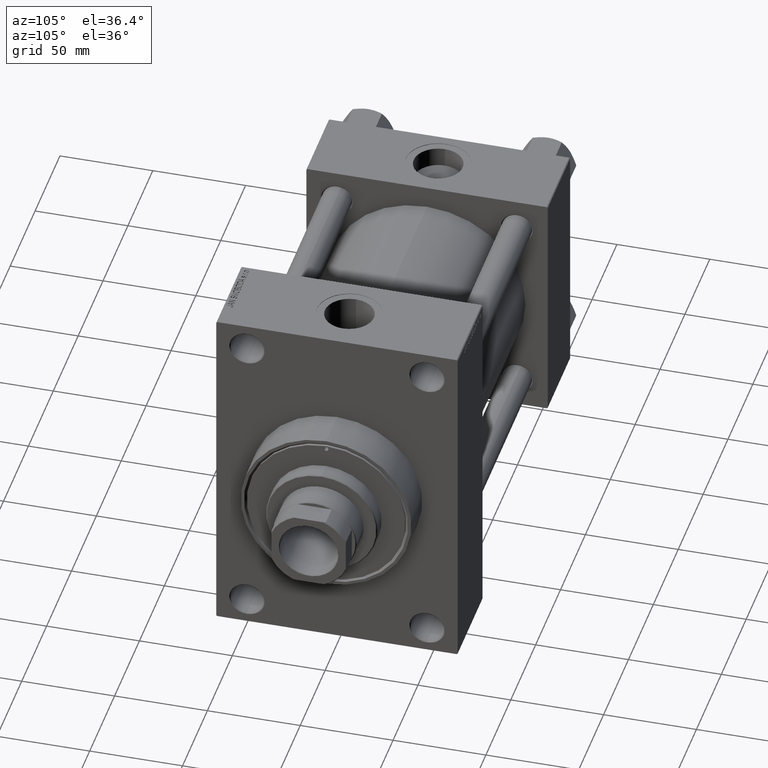
[diagram: clean part render]
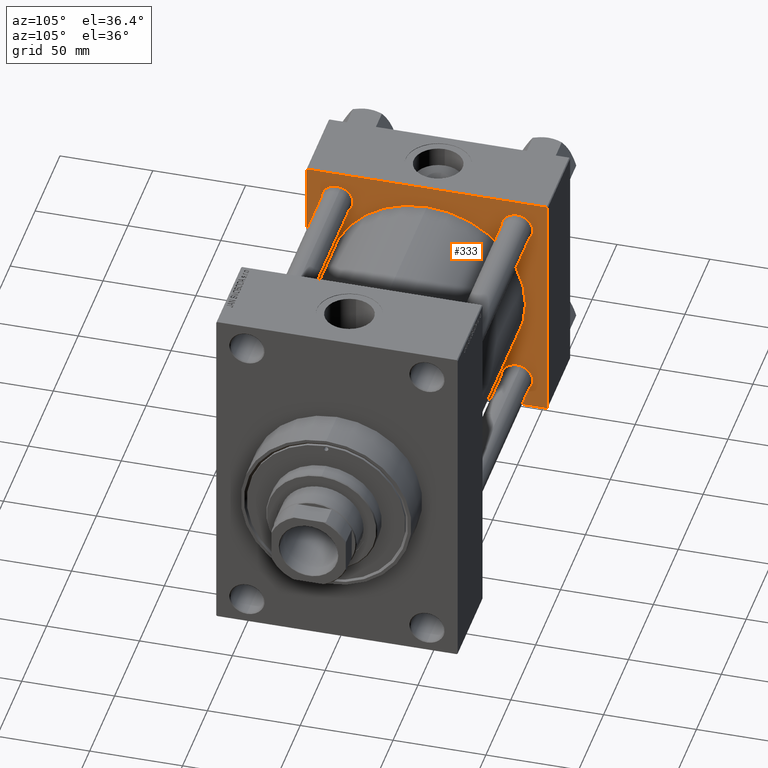
[diagram: same view with one face highlighted and labeled with its STEP entity id]
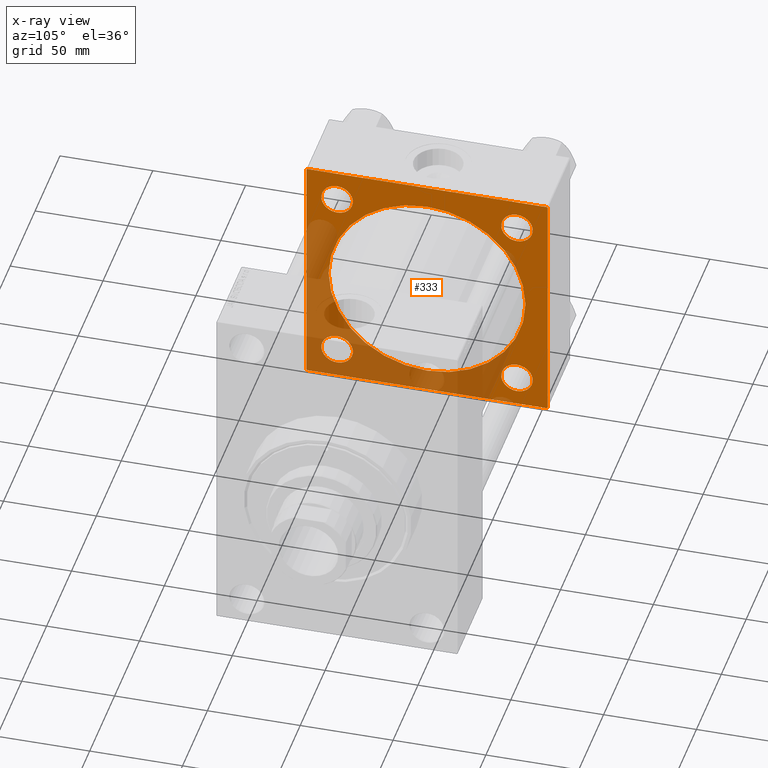
[diagram: x-ray of the same camera — body ghosted, the highlighted face saturated]
A machine part, auxiliary view. The second image highlights one B-rep face of the part: STEP entity #333.
The next image is the same camera in x-ray: the body ghosted, the highlighted face saturated — about 41% of this face is hidden behind the body in this view.
In plain terms, the highlighted planar face has unit normal (-1, 0, 0).
Its self-contained STEP definition (entity closure, byte-faithful):
#5 = ORIENTED_EDGE ( 'NONE', *, *, #9196, .T. ) ;
#77 = LINE ( 'NONE', #25258, #20166 ) ;
#333 = ADVANCED_FACE ( 'NONE', ( #32378, #20529, #2360, #16888, #16645, #17136 ), #46685, .F. ) ;
#645 = CIRCLE ( 'NONE', #47782, 8.500000000000007105 ) ;
#992 = CIRCLE ( 'NONE', #20305, 8.500000000000007105 ) ;
#1512 = EDGE_LOOP ( 'NONE', ( #13850, #5937 ) ) ;
#1544 = ORIENTED_EDGE ( 'NONE', *, *, #29699, .T. ) ;
#1743 = VERTEX_POINT ( 'NONE', #7114 ) ;
#1808 = DIRECTION ( 'NONE',  ( -1.000000000000000000, 0.000000000000000000, -0.000000000000000000 ) ) ;
#2360 = FACE_BOUND ( 'NONE', #25195, .T. ) ;
#2377 = VECTOR ( 'NONE', #30726, 1000.000000000000000 ) ;
#3067 = AXIS2_PLACEMENT_3D ( 'NONE', #26679, #41445, #9963 ) ;
#3274 = CIRCLE ( 'NONE', #14863, 8.500000000000007105 ) ;
#3380 = LINE ( 'NONE', #32442, #12457 ) ;
#3938 = DIRECTION ( 'NONE',  ( 0.000000000000000000, -0.7071067811865474617, 0.7071067811865474617 ) ) ;
#4026 = EDGE_CURVE ( 'NONE', #29438, #24361, #38602, .T. ) ;
#4693 = DIRECTION ( 'NONE',  ( 0.000000000000000000, 0.000000000000000000, 1.000000000000000000 ) ) ;
#4848 = EDGE_LOOP ( 'NONE', ( #14715, #23369 ) ) ;
#5066 = LINE ( 'NONE', #15964, #2377 ) ;
#5237 = ORIENTED_EDGE ( 'NONE', *, *, #7652, .T. ) ;
#5590 = CARTESIAN_POINT ( 'NONE',  ( 45.00000000000000000, -65.00000000000000000, -64.49999999999991473 ) ) ;
#5672 = DIRECTION ( 'NONE',  ( 0.000000000000000000, 0.000000000000000000, 1.000000000000000000 ) ) ;
#5937 = ORIENTED_EDGE ( 'NONE', *, *, #24471, .F. ) ;
#5981 = DIRECTION ( 'NONE',  ( -1.000000000000000000, 0.000000000000000000, -0.000000000000000000 ) ) ;
#6532 = EDGE_CURVE ( 'NONE', #34372, #24497, #18557, .T. ) ;
#7009 = CARTESIAN_POINT ( 'NONE',  ( 45.00000000000000000, 65.00000000000000000, 65.00000000000001421 ) ) ;
#7114 = CARTESIAN_POINT ( 'NONE',  ( 45.00000000000000000, 65.00000000000000000, 64.49999999999998579 ) ) ;
#7652 = EDGE_CURVE ( 'NONE', #27403, #20067, #12444, .T. ) ;
#8440 = AXIS2_PLACEMENT_3D ( 'NONE', #16737, #45333, #45810 ) ;
#8539 = EDGE_CURVE ( 'NONE', #37643, #42778, #992, .T. ) ;
#8758 = CARTESIAN_POINT ( 'NONE',  ( 45.00000000000000000, 64.49999999999997158, -64.99999999999998579 ) ) ;
#9196 = EDGE_CURVE ( 'NONE', #24361, #29438, #645, .T. ) ;
#9583 = CARTESIAN_POINT ( 'NONE',  ( 44.99999999999998579, -2.602085213965210642E-15, 0.000000000000000000 ) ) ;
#9676 = LINE ( 'NONE', #16917, #24437 ) ;
#9963 = DIRECTION ( 'NONE',  ( 0.000000000000000000, 0.000000000000000000, 1.000000000000000000 ) ) ;
#10003 = CIRCLE ( 'NONE', #8440, 8.500000000000007105 ) ;
#10171 = DIRECTION ( 'NONE',  ( -1.000000000000000000, 0.000000000000000000, -0.000000000000000000 ) ) ;
#10476 = VERTEX_POINT ( 'NONE', #24201 ) ;
#10692 = VERTEX_POINT ( 'NONE', #8758 ) ;
#11034 = CARTESIAN_POINT ( 'NONE',  ( 45.00000000000000000, -64.49999999999994316, -65.00000000000000000 ) ) ;
#11152 = CARTESIAN_POINT ( 'NONE',  ( 45.00000000000000000, 48.45000000000000995, 48.45000000000001705 ) ) ;
#11518 = AXIS2_PLACEMENT_3D ( 'NONE', #27207, #19937, #4693 ) ;
#11651 = VECTOR ( 'NONE', #26773, 1000.000000000000000 ) ;
#12444 = CIRCLE ( 'NONE', #42566, 8.500000000000007105 ) ;
#12457 = VECTOR ( 'NONE', #36322, 1000.000000000000114 ) ;
#12626 = ORIENTED_EDGE ( 'NONE', *, *, #27401, .T. ) ;
#12761 = EDGE_CURVE ( 'NONE', #14344, #34372, #9676, .T. ) ;
#13062 = CIRCLE ( 'NONE', #40130, 8.500000000000007105 ) ;
#13454 = DIRECTION ( 'NONE',  ( 0.000000000000000000, 0.000000000000000000, 1.000000000000000000 ) ) ;
#13850 = ORIENTED_EDGE ( 'NONE', *, *, #47036, .F. ) ;
#13855 = CARTESIAN_POINT ( 'NONE',  ( 45.00000000000000000, -48.44999999999999574, 56.95000000000003837 ) ) ;
#14344 = VERTEX_POINT ( 'NONE', #38397 ) ;
#14715 = ORIENTED_EDGE ( 'NONE', *, *, #33745, .T. ) ;
#14744 = DIRECTION ( 'NONE',  ( 0.000000000000000000, 0.000000000000000000, -1.000000000000000000 ) ) ;
#14863 = AXIS2_PLACEMENT_3D ( 'NONE', #11152, #15479, #22749 ) ;
#15479 = DIRECTION ( 'NONE',  ( -1.000000000000000000, 0.000000000000000000, -0.000000000000000000 ) ) ;
#15492 = VERTEX_POINT ( 'NONE', #11034 ) ;
#15887 = CARTESIAN_POINT ( 'NONE',  ( 45.00000000000000000, 65.00000000000000000, 65.00000000000001421 ) ) ;
#15964 = CARTESIAN_POINT ( 'NONE',  ( 45.00000000000000000, 65.00000000000000000, -64.99999999999998579 ) ) ;
#16072 = CARTESIAN_POINT ( 'NONE',  ( 45.00000000000000000, -65.00000000000000000, 64.50000000000000000 ) ) ;
#16195 = CIRCLE ( 'NONE', #3067, 53.00000000000000711 ) ;
#16361 = LINE ( 'NONE', #15887, #20202 ) ;
#16645 = FACE_BOUND ( 'NONE', #1512, .T. ) ;
#16737 = CARTESIAN_POINT ( 'NONE',  ( 45.00000000000000000, -48.44999999999999574, -48.45000000000003126 ) ) ;
#16888 = FACE_BOUND ( 'NONE', #4848, .T. ) ;
#16917 = CARTESIAN_POINT ( 'NONE',  ( 45.00000000000000000, -65.00000000000000000, 64.50000000000000000 ) ) ;
#17060 = DIRECTION ( 'NONE',  ( 0.000000000000000000, 0.000000000000000000, 1.000000000000000000 ) ) ;
#17087 = CARTESIAN_POINT ( 'NONE',  ( 45.00000000000000000, 48.45000000000000995, -56.95000000000002416 ) ) ;
#17136 = FACE_OUTER_BOUND ( 'NONE', #44914, .T. ) ;
#17212 = ORIENTED_EDGE ( 'NONE', *, *, #6532, .T. ) ;
#17374 = DIRECTION ( 'NONE',  ( -0.000000000000000000, 0.000000000000000000, 1.000000000000000000 ) ) ;
#18557 = LINE ( 'NONE', #29701, #11651 ) ;
#18876 = CARTESIAN_POINT ( 'NONE',  ( 45.00000000000000000, -64.49999999999994316, -65.00000000000000000 ) ) ;
#19163 = CARTESIAN_POINT ( 'NONE',  ( 45.00000000000000000, 48.45000000000000995, -39.95000000000000284 ) ) ;
#19440 = ORIENTED_EDGE ( 'NONE', *, *, #24669, .T. ) ;
#19566 = AXIS2_PLACEMENT_3D ( 'NONE', #9583, #28213, #13454 ) ;
#19774 = CARTESIAN_POINT ( 'NONE',  ( 45.00000000000000000, -48.44999999999999574, -39.95000000000001705 ) ) ;
#19937 = DIRECTION ( 'NONE',  ( -1.000000000000000000, 0.000000000000000000, -0.000000000000000000 ) ) ;
#20067 = VERTEX_POINT ( 'NONE', #13855 ) ;
#20166 = VECTOR ( 'NONE', #3938, 1000.000000000000114 ) ;
#20202 = VECTOR ( 'NONE', #42252, 1000.000000000000000 ) ;
#20305 = AXIS2_PLACEMENT_3D ( 'NONE', #31705, #38736, #20818 ) ;
#20529 = FACE_BOUND ( 'NONE', #28194, .T. ) ;
#20740 = CARTESIAN_POINT ( 'NONE',  ( 45.00000000000000000, -48.44999999999999574, 39.95000000000001705 ) ) ;
#20795 = CARTESIAN_POINT ( 'NONE',  ( 45.00000000000000000, 48.45000000000000995, 56.95000000000002416 ) ) ;
#20818 = DIRECTION ( 'NONE',  ( 0.000000000000000000, 0.000000000000000000, 1.000000000000000000 ) ) ;
#21053 = VERTEX_POINT ( 'NONE', #40898 ) ;
#21471 = AXIS2_PLACEMENT_3D ( 'NONE', #27787, #35296, #17374 ) ;
#22429 = EDGE_CURVE ( 'NONE', #37333, #39982, #13062, .T. ) ;
#22749 = DIRECTION ( 'NONE',  ( 0.000000000000000000, 0.000000000000000000, 1.000000000000000000 ) ) ;
#23369 = ORIENTED_EDGE ( 'NONE', *, *, #22429, .T. ) ;
#23478 = EDGE_CURVE ( 'NONE', #42778, #37643, #10003, .T. ) ;
#24201 = CARTESIAN_POINT ( 'NONE',  ( 44.99999999999998579, -2.602085213965210642E-15, 53.00000000000000711 ) ) ;
#24361 = VERTEX_POINT ( 'NONE', #19163 ) ;
#24437 = VECTOR ( 'NONE', #39199, 1000.000000000000000 ) ;
#24471 = EDGE_CURVE ( 'NONE', #41697, #10476, #16195, .T. ) ;
#24497 = VERTEX_POINT ( 'NONE', #5590 ) ;
#24669 = EDGE_CURVE ( 'NONE', #24497, #15492, #41620, .T. ) ;
#24845 = VECTOR ( 'NONE', #14744, 1000.000000000000000 ) ;
#25195 = EDGE_LOOP ( 'NONE', ( #5237, #12626 ) ) ;
#25258 = CARTESIAN_POINT ( 'NONE',  ( 45.00000000000000000, 64.49999999999997158, 65.00000000000001421 ) ) ;
#26027 = VERTEX_POINT ( 'NONE', #44003 ) ;
#26596 = LINE ( 'NONE', #7009, #24845 ) ;
#26679 = CARTESIAN_POINT ( 'NONE',  ( 44.99999999999998579, -2.602085213965210642E-15, 0.000000000000000000 ) ) ;
#26773 = DIRECTION ( 'NONE',  ( 0.000000000000000000, 0.000000000000000000, -1.000000000000000000 ) ) ;
#27207 = CARTESIAN_POINT ( 'NONE',  ( 45.00000000000000000, 48.45000000000000995, -48.45000000000001705 ) ) ;
#27401 = EDGE_CURVE ( 'NONE', #20067, #27403, #28682, .T. ) ;
#27403 = VERTEX_POINT ( 'NONE', #20740 ) ;
#27769 = ORIENTED_EDGE ( 'NONE', *, *, #8539, .T. ) ;
#27787 = CARTESIAN_POINT ( 'NONE',  ( 45.00000000000000000, 0.000000000000000000, 0.000000000000000000 ) ) ;
#28194 = EDGE_LOOP ( 'NONE', ( #40118, #5 ) ) ;
#28213 = DIRECTION ( 'NONE',  ( 1.000000000000000000, -0.000000000000000000, 0.000000000000000000 ) ) ;
#28422 = EDGE_CURVE ( 'NONE', #21053, #14344, #16361, .T. ) ;
#28624 = ORIENTED_EDGE ( 'NONE', *, *, #30130, .F. ) ;
#28682 = CIRCLE ( 'NONE', #41054, 8.500000000000007105 ) ;
#28797 = CARTESIAN_POINT ( 'NONE',  ( 45.00000000000000000, -48.44999999999999574, 48.45000000000003126 ) ) ;
#29339 = ORIENTED_EDGE ( 'NONE', *, *, #23478, .T. ) ;
#29438 = VERTEX_POINT ( 'NONE', #17087 ) ;
#29699 = EDGE_CURVE ( 'NONE', #1743, #21053, #77, .T. ) ;
#29701 = CARTESIAN_POINT ( 'NONE',  ( 45.00000000000000000, -65.00000000000000000, 65.00000000000000000 ) ) ;
#30130 = EDGE_CURVE ( 'NONE', #10692, #15492, #5066, .T. ) ;
#30481 = DIRECTION ( 'NONE',  ( 0.000000000000000000, 0.7071067811865279218, -0.7071067811865671127 ) ) ;
#30507 = ORIENTED_EDGE ( 'NONE', *, *, #43017, .T. ) ;
#30726 = DIRECTION ( 'NONE',  ( 0.000000000000000000, -1.000000000000000000, -1.067522139062650425E-16 ) ) ;
#31254 = EDGE_CURVE ( 'NONE', #1743, #26027, #26596, .T. ) ;
#31705 = CARTESIAN_POINT ( 'NONE',  ( 45.00000000000000000, -48.44999999999999574, -48.45000000000003126 ) ) ;
#32113 = DIRECTION ( 'NONE',  ( 0.000000000000000000, 0.000000000000000000, 1.000000000000000000 ) ) ;
#32378 = FACE_BOUND ( 'NONE', #47018, .T. ) ;
#32442 = CARTESIAN_POINT ( 'NONE',  ( 45.00000000000000000, 65.00000000000000000, -64.49999999999995737 ) ) ;
#32489 = CARTESIAN_POINT ( 'NONE',  ( 44.99999999999998579, 3.888542821515762466E-15, -53.00000000000000711 ) ) ;
#32747 = CARTESIAN_POINT ( 'NONE',  ( 45.00000000000000000, -48.44999999999999574, -56.95000000000003837 ) ) ;
#33022 = ORIENTED_EDGE ( 'NONE', *, *, #28422, .T. ) ;
#33546 = ORIENTED_EDGE ( 'NONE', *, *, #12761, .T. ) ;
#33745 = EDGE_CURVE ( 'NONE', #39982, #37333, #3274, .T. ) ;
#34259 = CARTESIAN_POINT ( 'NONE',  ( 45.00000000000000000, 48.45000000000000995, 48.45000000000001705 ) ) ;
#34264 = CIRCLE ( 'NONE', #19566, 53.00000000000000711 ) ;
#34372 = VERTEX_POINT ( 'NONE', #16072 ) ;
#35296 = DIRECTION ( 'NONE',  ( -1.000000000000000000, 0.000000000000000000, -0.000000000000000000 ) ) ;
#35827 = ORIENTED_EDGE ( 'NONE', *, *, #31254, .F. ) ;
#36322 = DIRECTION ( 'NONE',  ( -0.000000000000000000, 0.7071067811865474617, 0.7071067811865474617 ) ) ;
#36336 = VECTOR ( 'NONE', #30481, 1000.000000000000000 ) ;
#37333 = VERTEX_POINT ( 'NONE', #20795 ) ;
#37643 = VERTEX_POINT ( 'NONE', #19774 ) ;
#38397 = CARTESIAN_POINT ( 'NONE',  ( 45.00000000000000000, -64.49999999999997158, 65.00000000000000000 ) ) ;
#38602 = CIRCLE ( 'NONE', #11518, 8.500000000000007105 ) ;
#38616 = CARTESIAN_POINT ( 'NONE',  ( 45.00000000000000000, 48.45000000000000995, -48.45000000000001705 ) ) ;
#38736 = DIRECTION ( 'NONE',  ( -1.000000000000000000, 0.000000000000000000, -0.000000000000000000 ) ) ;
#39141 = CARTESIAN_POINT ( 'NONE',  ( 45.00000000000000000, -48.44999999999999574, 48.45000000000003126 ) ) ;
#39199 = DIRECTION ( 'NONE',  ( -0.000000000000000000, -0.7071067811865672237, -0.7071067811865279218 ) ) ;
#39982 = VERTEX_POINT ( 'NONE', #40900 ) ;
#40118 = ORIENTED_EDGE ( 'NONE', *, *, #4026, .T. ) ;
#40130 = AXIS2_PLACEMENT_3D ( 'NONE', #34259, #45864, #5672 ) ;
#40898 = CARTESIAN_POINT ( 'NONE',  ( 45.00000000000000000, 64.49999999999997158, 65.00000000000001421 ) ) ;
#40900 = CARTESIAN_POINT ( 'NONE',  ( 45.00000000000000000, 48.45000000000000995, 39.95000000000000284 ) ) ;
#41054 = AXIS2_PLACEMENT_3D ( 'NONE', #39141, #5981, #32113 ) ;
#41445 = DIRECTION ( 'NONE',  ( 1.000000000000000000, -0.000000000000000000, 0.000000000000000000 ) ) ;
#41620 = LINE ( 'NONE', #18876, #36336 ) ;
#41697 = VERTEX_POINT ( 'NONE', #32489 ) ;
#42252 = DIRECTION ( 'NONE',  ( 0.000000000000000000, -1.000000000000000000, -1.067522139062650425E-16 ) ) ;
#42566 = AXIS2_PLACEMENT_3D ( 'NONE', #28797, #10171, #43556 ) ;
#42778 = VERTEX_POINT ( 'NONE', #32747 ) ;
#43017 = EDGE_CURVE ( 'NONE', #10692, #26027, #3380, .T. ) ;
#43556 = DIRECTION ( 'NONE',  ( 0.000000000000000000, 0.000000000000000000, 1.000000000000000000 ) ) ;
#44003 = CARTESIAN_POINT ( 'NONE',  ( 45.00000000000000000, 65.00000000000000000, -64.49999999999995737 ) ) ;
#44914 = EDGE_LOOP ( 'NONE', ( #28624, #30507, #35827, #1544, #33022, #33546, #17212, #19440 ) ) ;
#45333 = DIRECTION ( 'NONE',  ( -1.000000000000000000, 0.000000000000000000, -0.000000000000000000 ) ) ;
#45810 = DIRECTION ( 'NONE',  ( 0.000000000000000000, 0.000000000000000000, 1.000000000000000000 ) ) ;
#45864 = DIRECTION ( 'NONE',  ( -1.000000000000000000, 0.000000000000000000, -0.000000000000000000 ) ) ;
#46685 = PLANE ( 'NONE',  #21471 ) ;
#47018 = EDGE_LOOP ( 'NONE', ( #29339, #27769 ) ) ;
#47036 = EDGE_CURVE ( 'NONE', #10476, #41697, #34264, .T. ) ;
#47782 = AXIS2_PLACEMENT_3D ( 'NONE', #38616, #1808, #17060 ) ;